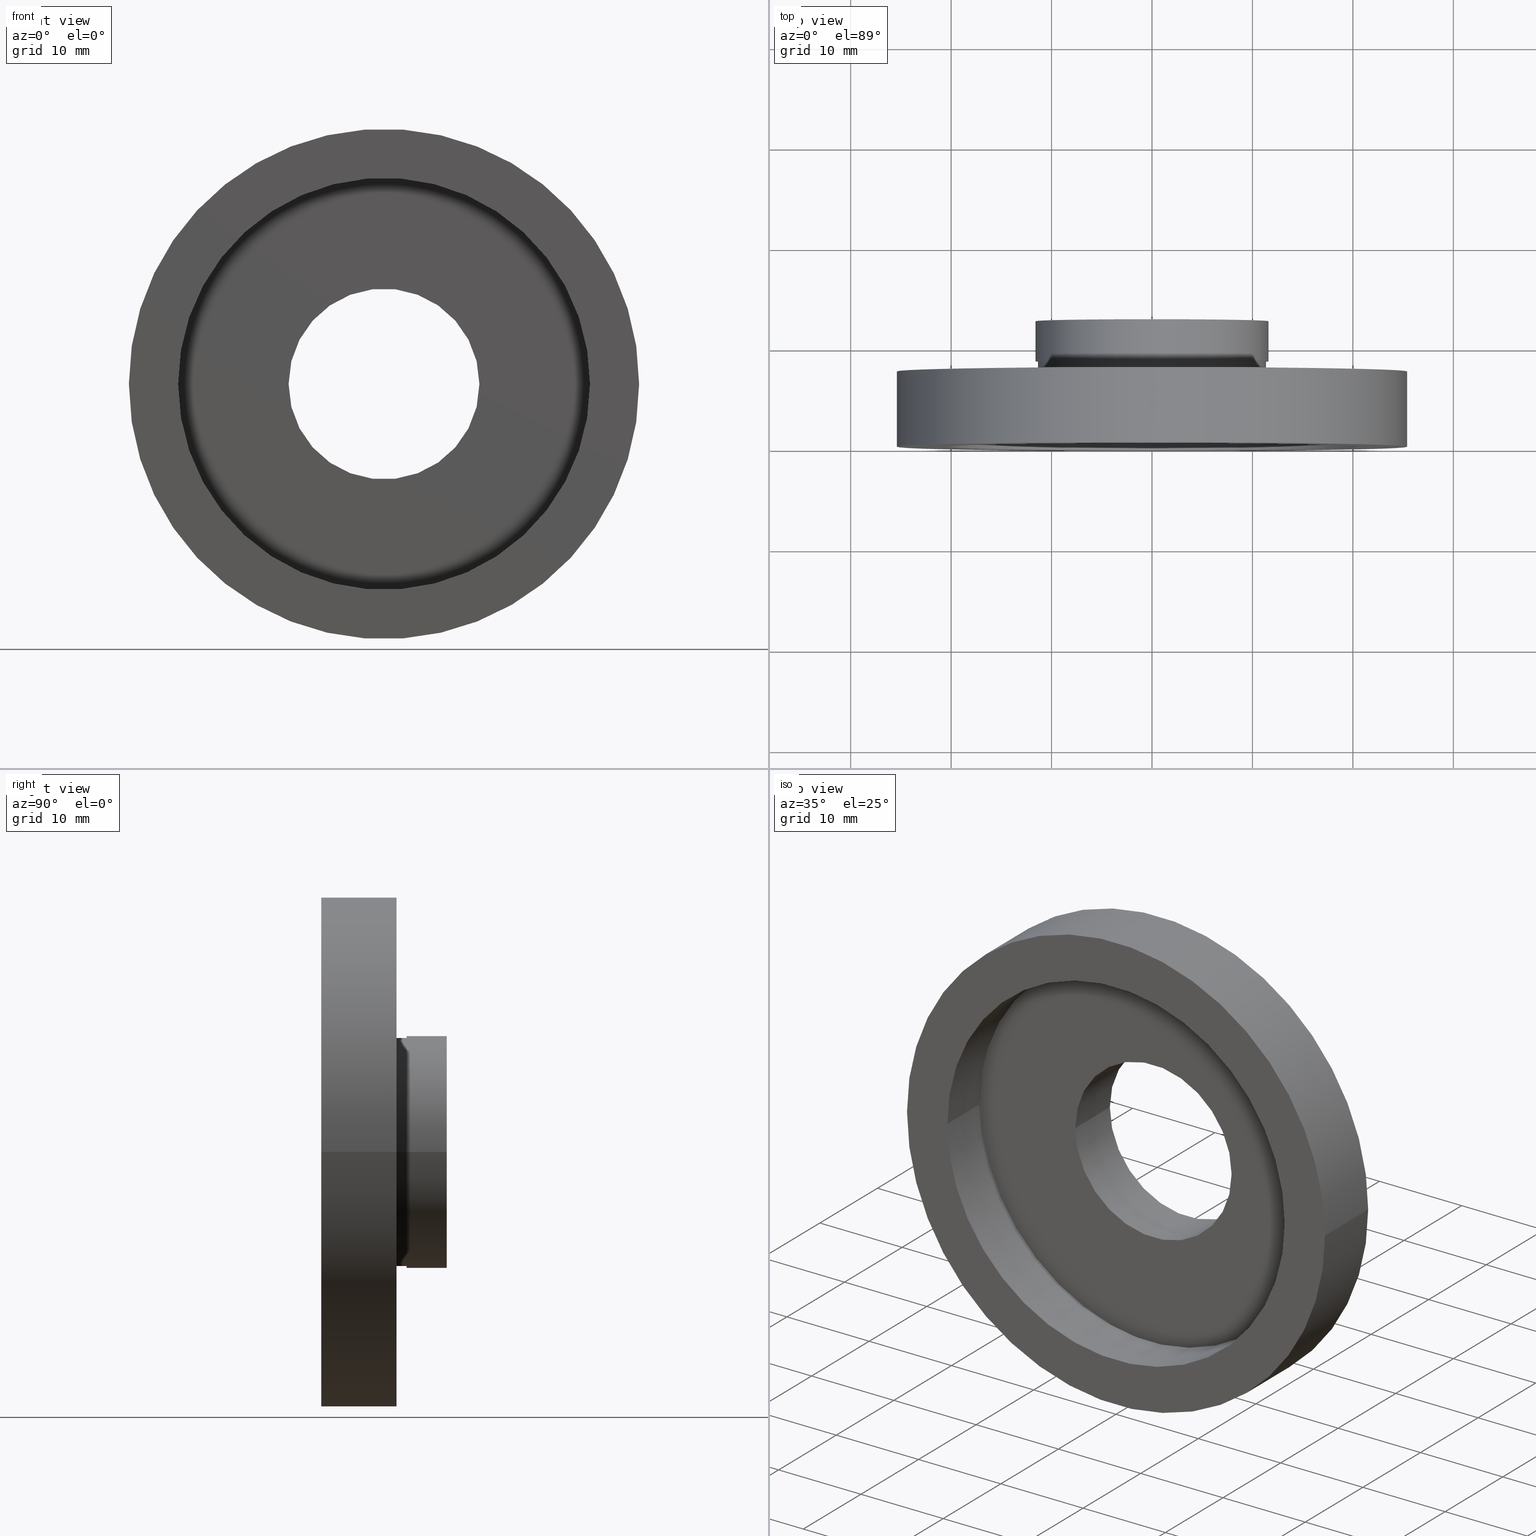
[diagram: canonical four-view strip — front | top / right | iso, engineering-drawing reading convention]
A machine part, canonical four-view strip (front | top / right | iso — engineering-drawing reading convention). The complete STEP part file that produces these views, byte-faithful:
ISO-10303-21;
HEADER;
FILE_DESCRIPTION (( 'STEP AP214' ),
    '1' );
FILE_NAME ('504044.STEP',
    '2019-10-08T03:09:59',
    ( 'user' ),
    ( '΢���й�' ),
    'SwSTEP 2.0',
    'SolidWorks 2016',
    '' );
FILE_SCHEMA (( 'AUTOMOTIVE_DESIGN' ));
ENDSEC;

DATA;
#1 = AXIS2_PLACEMENT_3D ( 'NONE', #214, #417, #514 ) ;
#2 = COLOUR_RGB ( '',1.000000000000000000, 1.000000000000000000, 1.000000000000000000 ) ;
#3 = FILL_AREA_STYLE ('',( #30 ) ) ;
#4 = CIRCLE ( 'NONE', #384, 25.39999999999999900 ) ;
#5 = EDGE_LOOP ( 'NONE', ( #171, #33, #71, #107 ) ) ;
#6 = DIRECTION ( 'NONE',  ( -1.224646799147351000E-016, 1.000000000000000000, 0.0000000000000000000 ) ) ;
#7 = MECHANICAL_DESIGN_GEOMETRIC_PRESENTATION_REPRESENTATION (  '', ( #573 ), #52 ) ;
#8 = CIRCLE ( 'NONE', #441, 11.35000000000000000 ) ;
#9 = SURFACE_SIDE_STYLE ('',( #447 ) ) ;
#10 = ORIENTED_EDGE ( 'NONE', *, *, #115, .F. ) ;
#11 = EDGE_CURVE ( 'NONE', #504, #350, #315, .T. ) ;
#12 = ORIENTED_EDGE ( 'NONE', *, *, #11, .T. ) ;
#13 = DIRECTION ( 'NONE',  ( -1.000000000000000000, -1.269309860470834200E-016, 0.0000000000000000000 ) ) ;
#14 = STYLED_ITEM ( 'NONE', ( #276 ), #94 ) ;
#15 = CARTESIAN_POINT ( 'NONE',  ( 0.0000000000000000000, 16.88601823708207700, 0.0000000000000000000 ) ) ;
#16 = EDGE_CURVE ( 'NONE', #555, #260, #332, .T. ) ;
#17 = AXIS2_PLACEMENT_3D ( 'NONE', #172, #174, #48 ) ;
#18 =( LENGTH_UNIT ( ) NAMED_UNIT ( * ) SI_UNIT ( .MILLI., .METRE. ) );
#19 =( GEOMETRIC_REPRESENTATION_CONTEXT ( 3 ) GLOBAL_UNCERTAINTY_ASSIGNED_CONTEXT ( ( #110 ) ) GLOBAL_UNIT_ASSIGNED_CONTEXT ( ( #24, #248, #327 ) ) REPRESENTATION_CONTEXT ( 'NONE', 'WORKASPACE' ) );
#20 = COLOUR_RGB ( '',1.000000000000000000, 1.000000000000000000, 1.000000000000000000 ) ;
#21 = CIRCLE ( 'NONE', #28, 9.500000000000001800 ) ;
#22 = ORIENTED_EDGE ( 'NONE', *, *, #175, .T. ) ;
#23 = FACE_OUTER_BOUND ( 'NONE', #364, .T. ) ;
#24 =( LENGTH_UNIT ( ) NAMED_UNIT ( * ) SI_UNIT ( .MILLI., .METRE. ) );
#25 = UNCERTAINTY_MEASURE_WITH_UNIT (LENGTH_MEASURE( 1.000000000000000100E-005 ), #367, 'distance_accuracy_value', 'NONE');
#26 = CARTESIAN_POINT ( 'NONE',  ( 21.10000000000000100, 5.499999999999999100, 2.584004746200915400E-015 ) ) ;
#27 = CARTESIAN_POINT ( 'NONE',  ( 11.60000000000000000, 16.88601823708207700, 1.420590287010929500E-015 ) ) ;
#28 = AXIS2_PLACEMENT_3D ( 'NONE', #35, #600, #464 ) ;
#29 = FILL_AREA_STYLE ('',( #494 ) ) ;
#30 = FILL_AREA_STYLE_COLOUR ( '', #20 ) ;
#31 = DIRECTION ( 'NONE',  ( -1.000000000000000000, -1.528390727732869900E-016, 0.0000000000000000000 ) ) ;
#32 = VECTOR ( 'NONE', #529, 1000.000000000000000 ) ;
#33 = ORIENTED_EDGE ( 'NONE', *, *, #175, .F. ) ;
#34 = VECTOR ( 'NONE', #124, 1000.000000000000000 ) ;
#35 = CARTESIAN_POINT ( 'NONE',  ( 5.371323195044473300E-016, 12.49999999999999600, 0.0000000000000000000 ) ) ;
#36 = VERTEX_POINT ( 'NONE', #585 ) ;
#37 = CARTESIAN_POINT ( 'NONE',  ( 0.0000000000000000000, 16.88601823708207700, 0.0000000000000000000 ) ) ;
#38 = PRODUCT_CONTEXT ( 'NONE', #236, 'mechanical' ) ;
#39 =( NAMED_UNIT ( * ) PLANE_ANGLE_UNIT ( ) SI_UNIT ( $, .RADIAN. ) );
#40 = AXIS2_PLACEMENT_3D ( 'NONE', #556, #437, #456 ) ;
#41 = ORIENTED_EDGE ( 'NONE', *, *, #82, .T. ) ;
#42 = CIRCLE ( 'NONE', #122, 11.35000000000000000 ) ;
#43 =( NAMED_UNIT ( * ) PLANE_ANGLE_UNIT ( ) SI_UNIT ( $, .RADIAN. ) );
#44 = ORIENTED_EDGE ( 'NONE', *, *, #89, .F. ) ;
#45 = DIRECTION ( 'NONE',  ( -1.000000000000000000, -1.692413147294445700E-016, 0.0000000000000000000 ) ) ;
#46 = ADVANCED_FACE ( 'NONE', ( #23 ), #413, .T. ) ;
#47 = DIRECTION ( 'NONE',  ( -1.000000000000000000, -1.644287654954319300E-016, 0.0000000000000000000 ) ) ;
#48 = DIRECTION ( 'NONE',  ( -1.000000000000000000, 0.0000000000000000000, 0.0000000000000000000 ) ) ;
#49 = DIRECTION ( 'NONE',  ( -1.224646799147351000E-016, 1.000000000000000000, -0.0000000000000000000 ) ) ;
#50 = CARTESIAN_POINT ( 'NONE',  ( 5.371323195044474300E-016, 12.49999999999999600, 0.0000000000000000000 ) ) ;
#51 = FACE_OUTER_BOUND ( 'NONE', #395, .T. ) ;
#52 =( GEOMETRIC_REPRESENTATION_CONTEXT ( 3 ) GLOBAL_UNCERTAINTY_ASSIGNED_CONTEXT ( ( #151 ) ) GLOBAL_UNIT_ASSIGNED_CONTEXT ( ( #176, #169, #458 ) ) REPRESENTATION_CONTEXT ( 'NONE', 'WORKASPACE' ) );
#53 = VECTOR ( 'NONE', #118, 1000.000000000000000 ) ;
#54 = ADVANCED_FACE ( 'NONE', ( #548 ), #286, .T. ) ;
#55 = ORIENTED_EDGE ( 'NONE', *, *, #612, .F. ) ;
#56 = EDGE_CURVE ( 'NONE', #244, #357, #489, .T. ) ;
#57 = PRESENTATION_LAYER_ASSIGNMENT (  '', '', ( #14 ) ) ;
#58 = EDGE_CURVE ( 'NONE', #371, #478, #61, .T. ) ;
#59 =( GEOMETRIC_REPRESENTATION_CONTEXT ( 3 ) GLOBAL_UNCERTAINTY_ASSIGNED_CONTEXT ( ( #105 ) ) GLOBAL_UNIT_ASSIGNED_CONTEXT ( ( #358, #43, #340 ) ) REPRESENTATION_CONTEXT ( 'NONE', 'WORKASPACE' ) );
#60 = ORIENTED_EDGE ( 'NONE', *, *, #430, .F. ) ;
#61 = CIRCLE ( 'NONE', #511, 25.39999999999999500 ) ;
#62 = AXIS2_PLACEMENT_3D ( 'NONE', #183, #492, #308 ) ;
#63 = CYLINDRICAL_SURFACE ( 'NONE', #17, 11.35000000000000000 ) ;
#64 = ORIENTED_EDGE ( 'NONE', *, *, #544, .F. ) ;
#65 = FACE_OUTER_BOUND ( 'NONE', #165, .T. ) ;
#66 = CARTESIAN_POINT ( 'NONE',  ( 5.371323195044473300E-016, 12.49999999999999600, 0.0000000000000000000 ) ) ;
#67 = CARTESIAN_POINT ( 'NONE',  ( 1.271920398992858000E-015, 6.499999999999997300, 0.0000000000000000000 ) ) ;
#68 = DIRECTION ( 'NONE',  ( -1.000000000000000000, -1.224646799147351000E-016, 0.0000000000000000000 ) ) ;
#69 = ORIENTED_EDGE ( 'NONE', *, *, #146, .T. ) ;
#70 = FACE_OUTER_BOUND ( 'NONE', #208, .T. ) ;
#71 = ORIENTED_EDGE ( 'NONE', *, *, #239, .T. ) ;
#72 = PRESENTATION_LAYER_ASSIGNMENT (  '', '', ( #108 ) ) ;
#73 = FILL_AREA_STYLE_COLOUR ( '', #496 ) ;
#74 = CARTESIAN_POINT ( 'NONE',  ( 1.026991039163387700E-015, 8.499999999999998200, 0.0000000000000000000 ) ) ;
#75 = DIRECTION ( 'NONE',  ( -1.224646799147351000E-016, 1.000000000000000000, -0.0000000000000000000 ) ) ;
#76 = ORIENTED_EDGE ( 'NONE', *, *, #16, .T. ) ;
#77 = COLOUR_RGB ( '',1.000000000000000000, 1.000000000000000000, 1.000000000000000000 ) ;
#78 = DIRECTION ( 'NONE',  ( -1.000000000000000000, -1.365923996832131600E-016, 0.0000000000000000000 ) ) ;
#79 = CYLINDRICAL_SURFACE ( 'NONE', #463, 25.39999999999999900 ) ;
#80 = SURFACE_STYLE_USAGE ( .BOTH. , #443 ) ;
#81 = CARTESIAN_POINT ( 'NONE',  ( 0.0000000000000000000, 16.88601823708207700, 0.0000000000000000000 ) ) ;
#82 = EDGE_CURVE ( 'NONE', #504, #273, #312, .T. ) ;
#83 =( NAMED_UNIT ( * ) PLANE_ANGLE_UNIT ( ) SI_UNIT ( $, .RADIAN. ) );
#84 = DIRECTION ( 'NONE',  ( 1.000000000000000000, 1.224646799147351000E-016, 0.0000000000000000000 ) ) ;
#85 = COLOUR_RGB ( '',1.000000000000000000, 1.000000000000000000, 1.000000000000000000 ) ;
#86 = MECHANICAL_DESIGN_GEOMETRIC_PRESENTATION_REPRESENTATION (  '', ( #14 ), #116 ) ;
#87 = EDGE_LOOP ( 'NONE', ( #60, #572 ) ) ;
#88 = EDGE_LOOP ( 'NONE', ( #259, #41, #509, #321 ) ) ;
#89 = EDGE_CURVE ( 'NONE', #420, #311, #403, .T. ) ;
#90 = AXIS2_PLACEMENT_3D ( 'NONE', #329, #6, #280 ) ;
#91 = DIRECTION ( 'NONE',  ( -1.000000000000000000, -1.644287654954319300E-016, 0.0000000000000000000 ) ) ;
#92 = CARTESIAN_POINT ( 'NONE',  ( 1.394385078907593200E-015, 5.499999999999996400, 0.0000000000000000000 ) ) ;
#93 = AXIS2_PLACEMENT_3D ( 'NONE', #190, #120, #563 ) ;
#94 = ADVANCED_FACE ( 'NONE', ( #180 ), #251, .F. ) ;
#95 = CARTESIAN_POINT ( 'NONE',  ( -21.10000000000000100, 6.499999999999994700, 0.0000000000000000000 ) ) ;
#96 = ADVANCED_FACE ( 'NONE', ( #381 ), #119, .F. ) ;
#97 = FACE_OUTER_BOUND ( 'NONE', #480, .T. ) ;
#98 = FILL_AREA_STYLE_COLOUR ( '', #77 ) ;
#99 = CLOSED_SHELL ( 'NONE', ( #54, #424, #46, #231, #96, #94, #415, #237, #557, #466, #616, #349, #379, #474, #298, #564, #192, #352 ) ) ;
#100 = DIRECTION ( 'NONE',  ( -1.224646799147351000E-016, 1.000000000000000000, -0.0000000000000000000 ) ) ;
#101 = DIRECTION ( 'NONE',  ( -1.224646799147351000E-016, 1.000000000000000000, -0.0000000000000000000 ) ) ;
#102 =( NAMED_UNIT ( * ) SI_UNIT ( $, .STERADIAN. ) SOLID_ANGLE_UNIT ( ) );
#103 =( NAMED_UNIT ( * ) SI_UNIT ( $, .STERADIAN. ) SOLID_ANGLE_UNIT ( ) );
#104 = CARTESIAN_POINT ( 'NONE',  ( 9.500000000000001800, 16.88601823708207700, 1.163414459189985700E-015 ) ) ;
#105 = UNCERTAINTY_MEASURE_WITH_UNIT (LENGTH_MEASURE( 1.000000000000000100E-005 ), #358, 'distance_accuracy_value', 'NONE');
#106 = DIRECTION ( 'NONE',  ( -1.224646799147351000E-016, 1.000000000000000000, -0.0000000000000000000 ) ) ;
#107 = ORIENTED_EDGE ( 'NONE', *, *, #270, .T. ) ;
#108 = STYLED_ITEM ( 'NONE', ( #594 ), #474 ) ;
#109 =( GEOMETRIC_REPRESENTATION_CONTEXT ( 3 ) GLOBAL_UNCERTAINTY_ASSIGNED_CONTEXT ( ( #426 ) ) GLOBAL_UNIT_ASSIGNED_CONTEXT ( ( #382, #39, #103 ) ) REPRESENTATION_CONTEXT ( 'NONE', 'WORKASPACE' ) );
#110 = UNCERTAINTY_MEASURE_WITH_UNIT (LENGTH_MEASURE( 1.000000000000000100E-005 ), #24, 'distance_accuracy_value', 'NONE');
#111 = DIRECTION ( 'NONE',  ( -1.000000000000000000, -1.495451272393799300E-016, 0.0000000000000000000 ) ) ;
#112 = ORIENTED_EDGE ( 'NONE', *, *, #399, .T. ) ;
#113 = DIRECTION ( 'NONE',  ( -1.224646799147351000E-016, 1.000000000000000000, -0.0000000000000000000 ) ) ;
#114 = FILL_AREA_STYLE_COLOUR ( '', #2 ) ;
#115 = EDGE_CURVE ( 'NONE', #141, #392, #134, .T. ) ;
#116 =( GEOMETRIC_REPRESENTATION_CONTEXT ( 3 ) GLOBAL_UNCERTAINTY_ASSIGNED_CONTEXT ( ( #550 ) ) GLOBAL_UNIT_ASSIGNED_CONTEXT ( ( #374, #225, #598 ) ) REPRESENTATION_CONTEXT ( 'NONE', 'WORKASPACE' ) );
#117 = EDGE_CURVE ( 'NONE', #451, #260, #454, .T. ) ;
#118 = DIRECTION ( 'NONE',  ( -1.224646799147351000E-016, 1.000000000000000000, -0.0000000000000000000 ) ) ;
#119 = CYLINDRICAL_SURFACE ( 'NONE', #242, 21.10000000000000100 ) ;
#120 = DIRECTION ( 'NONE',  ( -1.224646799147351000E-016, 1.000000000000000000, -0.0000000000000000000 ) ) ;
#121 = CARTESIAN_POINT ( 'NONE',  ( 1.271920398992858000E-015, 6.499999999999997300, 0.0000000000000000000 ) ) ;
#122 = AXIS2_PLACEMENT_3D ( 'NONE', #388, #366, #467 ) ;
#123 = SURFACE_SIDE_STYLE ('',( #532 ) ) ;
#124 = DIRECTION ( 'NONE',  ( -1.224646799147351000E-016, 1.000000000000000000, -0.0000000000000000000 ) ) ;
#125 = ORIENTED_EDGE ( 'NONE', *, *, #482, .F. ) ;
#126 = ORIENTED_EDGE ( 'NONE', *, *, #281, .T. ) ;
#127 = DIRECTION ( 'NONE',  ( -1.000000000000000000, 0.0000000000000000000, 0.0000000000000000000 ) ) ;
#128 = CARTESIAN_POINT ( 'NONE',  ( -11.35000000000000000, 16.88601823708207700, 0.0000000000000000000 ) ) ;
#129 = AXIS2_PLACEMENT_3D ( 'NONE', #81, #505, #47 ) ;
#130 = DIRECTION ( 'NONE',  ( -1.224646799147351000E-016, 1.000000000000000000, -0.0000000000000000000 ) ) ;
#131 = DIRECTION ( 'NONE',  ( -1.000000000000000000, 0.0000000000000000000, 0.0000000000000000000 ) ) ;
#132 = MANIFOLD_SOLID_BREP ( '��ת1', #99 ) ;
#133 = ORIENTED_EDGE ( 'NONE', *, *, #430, .T. ) ;
#134 = CIRCLE ( 'NONE', #144, 21.10000000000000100 ) ;
#135 = CARTESIAN_POINT ( 'NONE',  ( 0.0000000000000000000, 16.88601823708207700, 0.0000000000000000000 ) ) ;
#136 = APPLICATION_PROTOCOL_DEFINITION ( 'draft international standard', 'automotive_design', 1998, #337 ) ;
#137 = DIRECTION ( 'NONE',  ( -1.000000000000000000, -1.692413147294445700E-016, 0.0000000000000000000 ) ) ;
#138 = CARTESIAN_POINT ( 'NONE',  ( 2.067940818438636500E-015, -3.469446951953614200E-015, 0.0000000000000000000 ) ) ;
#139 = UNCERTAINTY_MEASURE_WITH_UNIT (LENGTH_MEASURE( 1.000000000000000100E-005 ), #18, 'distance_accuracy_value', 'NONE');
#140 = EDGE_LOOP ( 'NONE', ( #405, #305 ) ) ;
#141 = VERTEX_POINT ( 'NONE', #95 ) ;
#142 = ORIENTED_EDGE ( 'NONE', *, *, #541, .T. ) ;
#143 = EDGE_CURVE ( 'NONE', #273, #591, #21, .T. ) ;
#144 = AXIS2_PLACEMENT_3D ( 'NONE', #67, #263, #294 ) ;
#145 = SURFACE_SIDE_STYLE ('',( #603 ) ) ;
#146 = EDGE_CURVE ( 'NONE', #311, #623, #386, .T. ) ;
#147 = STYLED_ITEM ( 'NONE', ( #440 ), #428 ) ;
#148 = CARTESIAN_POINT ( 'NONE',  ( 0.0000000000000000000, 16.88601823708207700, 0.0000000000000000000 ) ) ;
#149 = FACE_BOUND ( 'NONE', #87, .T. ) ;
#150 = FILL_AREA_STYLE ('',( #394 ) ) ;
#151 = UNCERTAINTY_MEASURE_WITH_UNIT (LENGTH_MEASURE( 1.000000000000000100E-005 ), #176, 'distance_accuracy_value', 'NONE');
#152 = AXIS2_PLACEMENT_3D ( 'NONE', #445, #404, #579 ) ;
#153 =( NAMED_UNIT ( * ) PLANE_ANGLE_UNIT ( ) SI_UNIT ( $, .RADIAN. ) );
#154 = CIRCLE ( 'NONE', #409, 11.60000000000000000 ) ;
#155 = DIRECTION ( 'NONE',  ( -1.224646799147351000E-016, 1.000000000000000000, -0.0000000000000000000 ) ) ;
#156 = FACE_OUTER_BOUND ( 'NONE', #5, .T. ) ;
#157 = ORIENTED_EDGE ( 'NONE', *, *, #508, .F. ) ;
#158 =( LENGTH_UNIT ( ) NAMED_UNIT ( * ) SI_UNIT ( .MILLI., .METRE. ) );
#159 = DIRECTION ( 'NONE',  ( -1.224646799147351000E-016, 1.000000000000000000, -0.0000000000000000000 ) ) ;
#160 = EDGE_LOOP ( 'NONE', ( #510, #268, #202, #502 ) ) ;
#161 = VERTEX_POINT ( 'NONE', #521 ) ;
#162 = CIRCLE ( 'NONE', #62, 9.500000000000000000 ) ;
#163 = MECHANICAL_DESIGN_GEOMETRIC_PRESENTATION_REPRESENTATION (  '', ( #108 ), #194 ) ;
#164 = ORIENTED_EDGE ( 'NONE', *, *, #281, .F. ) ;
#165 = EDGE_LOOP ( 'NONE', ( #133, #422, #285, #55 ) ) ;
#166 = FILL_AREA_STYLE ('',( #114 ) ) ;
#167 = CARTESIAN_POINT ( 'NONE',  ( 2.067940818438636500E-015, -3.469446951953614200E-015, 0.0000000000000000000 ) ) ;
#168 = DIRECTION ( 'NONE',  ( -1.224646799147351000E-016, 1.000000000000000000, -0.0000000000000000000 ) ) ;
#169 =( NAMED_UNIT ( * ) PLANE_ANGLE_UNIT ( ) SI_UNIT ( $, .RADIAN. ) );
#170 = VERTEX_POINT ( 'NONE', #347 ) ;
#171 = ORIENTED_EDGE ( 'NONE', *, *, #82, .F. ) ;
#172 = CARTESIAN_POINT ( 'NONE',  ( 0.0000000000000000000, 16.88601823708207700, 0.0000000000000000000 ) ) ;
#173 = SURFACE_STYLE_USAGE ( .BOTH. , #145 ) ;
#174 = DIRECTION ( 'NONE',  ( -1.224646799147351000E-016, 1.000000000000000000, -0.0000000000000000000 ) ) ;
#175 = EDGE_CURVE ( 'NONE', #350, #504, #162, .T. ) ;
#176 =( LENGTH_UNIT ( ) NAMED_UNIT ( * ) SI_UNIT ( .MILLI., .METRE. ) );
#177 = STYLED_ITEM ( 'NONE', ( #243 ), #132 ) ;
#178 = DIRECTION ( 'NONE',  ( -1.224646799147351000E-016, 1.000000000000000000, -0.0000000000000000000 ) ) ;
#179 = ORIENTED_EDGE ( 'NONE', *, *, #218, .T. ) ;
#180 = FACE_OUTER_BOUND ( 'NONE', #292, .T. ) ;
#181 = CARTESIAN_POINT ( 'NONE',  ( 1.149455719078123100E-015, 7.499999999999996400, 0.0000000000000000000 ) ) ;
#182 = PRESENTATION_LAYER_ASSIGNMENT (  '', '', ( #147 ) ) ;
#183 = CARTESIAN_POINT ( 'NONE',  ( 1.271920398992858000E-015, 6.499999999999997300, 0.0000000000000000000 ) ) ;
#184 = CARTESIAN_POINT ( 'NONE',  ( 1.026991039163387700E-015, 8.499999999999998200, 0.0000000000000000000 ) ) ;
#185 = AXIS2_PLACEMENT_3D ( 'NONE', #92, #271, #491 ) ;
#186 = DIRECTION ( 'NONE',  ( -1.224646799147351000E-016, 1.000000000000000000, -0.0000000000000000000 ) ) ;
#187 = VECTOR ( 'NONE', #530, 1000.000000000000000 ) ;
#188 =( LENGTH_UNIT ( ) NAMED_UNIT ( * ) SI_UNIT ( .MILLI., .METRE. ) );
#189 = VECTOR ( 'NONE', #476, 1000.000000000000000 ) ;
#190 = CARTESIAN_POINT ( 'NONE',  ( 1.271920398992858000E-015, 6.499999999999997300, 0.0000000000000000000 ) ) ;
#191 = DIRECTION ( 'NONE',  ( -1.000000000000000000, -1.495451272393799300E-016, 0.0000000000000000000 ) ) ;
#192 = ADVANCED_FACE ( 'NONE', ( #149, #274 ), #620, .F. ) ;
#193 = SURFACE_STYLE_USAGE ( .BOTH. , #565 ) ;
#194 =( GEOMETRIC_REPRESENTATION_CONTEXT ( 3 ) GLOBAL_UNCERTAINTY_ASSIGNED_CONTEXT ( ( #139 ) ) GLOBAL_UNIT_ASSIGNED_CONTEXT ( ( #18, #153, #331 ) ) REPRESENTATION_CONTEXT ( 'NONE', 'WORKASPACE' ) );
#195 = AXIS2_PLACEMENT_3D ( 'NONE', #354, #360, #414 ) ;
#196 = CARTESIAN_POINT ( 'NONE',  ( -9.500000000000001800, 16.88601823708207700, 0.0000000000000000000 ) ) ;
#197 = PRESENTATION_STYLE_ASSIGNMENT (( #542 ) ) ;
#198 = DIRECTION ( 'NONE',  ( -1.000000000000000000, -1.233215741215739600E-016, 0.0000000000000000000 ) ) ;
#199 = FACE_BOUND ( 'NONE', #593, .T. ) ;
#200 = EDGE_LOOP ( 'NONE', ( #64, #488, #429, #495 ) ) ;
#201 = CIRCLE ( 'NONE', #290, 9.500000000000001800 ) ;
#202 = ORIENTED_EDGE ( 'NONE', *, *, #577, .T. ) ;
#203 = DIRECTION ( 'NONE',  ( -1.000000000000000000, -1.495451272393799500E-016, 0.0000000000000000000 ) ) ;
#204 = CARTESIAN_POINT ( 'NONE',  ( 11.35000000000000000, 16.88601823708207700, 1.389974117032245900E-015 ) ) ;
#205 = DIRECTION ( 'NONE',  ( -1.224646799147351000E-016, 1.000000000000000000, -0.0000000000000000000 ) ) ;
#206 = CARTESIAN_POINT ( 'NONE',  ( 25.39999999999999900, 7.500000000000000000, 3.110602869834276900E-015 ) ) ;
#207 = EDGE_CURVE ( 'NONE', #36, #170, #42, .T. ) ;
#208 = EDGE_LOOP ( 'NONE', ( #610, #528, #553, #531 ) ) ;
#209 = EDGE_LOOP ( 'NONE', ( #431, #477 ) ) ;
#210 = AXIS2_PLACEMENT_3D ( 'NONE', #222, #450, #137 ) ;
#211 = CARTESIAN_POINT ( 'NONE',  ( -11.60000000000000000, 12.49999999999999500, 0.0000000000000000000 ) ) ;
#212 = CARTESIAN_POINT ( 'NONE',  ( -20.50000000000000400, 16.88601823708207300, 0.0000000000000000000 ) ) ;
#213 = MECHANICAL_DESIGN_GEOMETRIC_PRESENTATION_REPRESENTATION (  '', ( #147 ), #109 ) ;
#214 = CARTESIAN_POINT ( 'NONE',  ( 1.149455719078122700E-015, 7.499999999999998200, 0.0000000000000000000 ) ) ;
#215 = DIRECTION ( 'NONE',  ( -1.224646799147351000E-016, 1.000000000000000000, -0.0000000000000000000 ) ) ;
#216 = CYLINDRICAL_SURFACE ( 'NONE', #400, 9.500000000000001800 ) ;
#217 = FACE_BOUND ( 'NONE', #209, .T. ) ;
#218 = EDGE_CURVE ( 'NONE', #357, #244, #258, .T. ) ;
#219 = LINE ( 'NONE', #295, #551 ) ;
#220 = SURFACE_STYLE_USAGE ( .BOTH. , #615 ) ;
#221 = STYLED_ITEM ( 'NONE', ( #449 ), #231 ) ;
#222 = CARTESIAN_POINT ( 'NONE',  ( 0.0000000000000000000, 16.88601823708207700, 0.0000000000000000000 ) ) ;
#223 = CARTESIAN_POINT ( 'NONE',  ( 11.35000000000000100, 7.500000000000000000, 1.389974117032245900E-015 ) ) ;
#224 = CARTESIAN_POINT ( 'NONE',  ( 9.500000000000001800, 12.49999999999999800, 0.0000000000000000000 ) ) ;
#225 =( NAMED_UNIT ( * ) PLANE_ANGLE_UNIT ( ) SI_UNIT ( $, .RADIAN. ) );
#226 = CARTESIAN_POINT ( 'NONE',  ( 0.0000000000000000000, 16.88601823708207700, 0.0000000000000000000 ) ) ;
#227 = FACE_OUTER_BOUND ( 'NONE', #252, .T. ) ;
#228 = APPLICATION_PROTOCOL_DEFINITION ( 'draft international standard', 'automotive_design', 1998, #236 ) ;
#229 = CARTESIAN_POINT ( 'NONE',  ( 1.149455719078123100E-015, 7.499999999999996400, 0.0000000000000000000 ) ) ;
#230 = AXIS2_PLACEMENT_3D ( 'NONE', #181, #215, #567 ) ;
#231 = ADVANCED_FACE ( 'NONE', ( #291 ), #216, .F. ) ;
#232 = CARTESIAN_POINT ( 'NONE',  ( -9.499999999999998200, 6.499999999999996400, 0.0000000000000000000 ) ) ;
#233 = CIRCLE ( 'NONE', #1, 11.35000000000000000 ) ;
#234 = PRODUCT_DEFINITION ( 'δ֪', '', #261, #624 ) ;
#235 = LINE ( 'NONE', #465, #34 ) ;
#236 = APPLICATION_CONTEXT ( 'automotive_design' ) ;
#237 = ADVANCED_FACE ( 'NONE', ( #333 ), #335, .F. ) ;
#238 = CYLINDRICAL_SURFACE ( 'NONE', #383, 11.60000000000000000 ) ;
#239 = EDGE_CURVE ( 'NONE', #350, #591, #421, .T. ) ;
#240 = EDGE_LOOP ( 'NONE', ( #589, #518, #125, #363 ) ) ;
#241 = PRODUCT_DEFINITION_SHAPE ( 'NONE', 'NONE',  #234 ) ;
#242 = AXIS2_PLACEMENT_3D ( 'NONE', #549, #205, #91 ) ;
#243 = PRESENTATION_STYLE_ASSIGNMENT (( #220 ) ) ;
#244 = VERTEX_POINT ( 'NONE', #344 ) ;
#245 = ORIENTED_EDGE ( 'NONE', *, *, #407, .F. ) ;
#246 = EDGE_CURVE ( 'NONE', #623, #396, #554, .T. ) ;
#247 = PRESENTATION_LAYER_ASSIGNMENT (  '', '', ( #221 ) ) ;
#248 =( NAMED_UNIT ( * ) PLANE_ANGLE_UNIT ( ) SI_UNIT ( $, .RADIAN. ) );
#249 = LINE ( 'NONE', #561, #460 ) ;
#250 = ORIENTED_EDGE ( 'NONE', *, *, #473, .F. ) ;
#251 = CYLINDRICAL_SURFACE ( 'NONE', #210, 20.50000000000000400 ) ;
#252 = EDGE_LOOP ( 'NONE', ( #341, #179 ) ) ;
#253 = EDGE_LOOP ( 'NONE', ( #22, #12 ) ) ;
#254 = SURFACE_STYLE_USAGE ( .BOTH. , #338 ) ;
#255 =( GEOMETRIC_REPRESENTATION_CONTEXT ( 3 ) GLOBAL_UNCERTAINTY_ASSIGNED_CONTEXT ( ( #297 ) ) GLOBAL_UNIT_ASSIGNED_CONTEXT ( ( #158, #459, #435 ) ) REPRESENTATION_CONTEXT ( 'NONE', 'WORKASPACE' ) );
#256 = DIRECTION ( 'NONE',  ( -1.000000000000000000, -1.224646799147351000E-016, 0.0000000000000000000 ) ) ;
#257 = AXIS2_PLACEMENT_3D ( 'NONE', #167, #348, #256 ) ;
#258 = CIRCLE ( 'NONE', #185, 21.10000000000000100 ) ;
#259 = ORIENTED_EDGE ( 'NONE', *, *, #11, .F. ) ;
#260 = VERTEX_POINT ( 'NONE', #562 ) ;
#261 = PRODUCT_DEFINITION_FORMATION_WITH_SPECIFIED_SOURCE ( '�κ�', '', #602, .NOT_KNOWN. ) ;
#262 = CARTESIAN_POINT ( 'NONE',  ( -11.60000000000000000, 16.88601823708207700, 0.0000000000000000000 ) ) ;
#263 = DIRECTION ( 'NONE',  ( -1.224646799147351000E-016, 1.000000000000000000, -0.0000000000000000000 ) ) ;
#264 = CARTESIAN_POINT ( 'NONE',  ( 20.50000000000000400, 5.500000000000000000, 0.0000000000000000000 ) ) ;
#265 = CARTESIAN_POINT ( 'NONE',  ( 5.371323195044474300E-016, 12.49999999999999600, 0.0000000000000000000 ) ) ;
#266 = FACE_OUTER_BOUND ( 'NONE', #326, .T. ) ;
#267 = SURFACE_STYLE_FILL_AREA ( #592 ) ;
#268 = ORIENTED_EDGE ( 'NONE', *, *, #343, .T. ) ;
#269 = CARTESIAN_POINT ( 'NONE',  ( -25.39999999999999900, 16.88601823708207300, 0.0000000000000000000 ) ) ;
#270 = EDGE_CURVE ( 'NONE', #591, #273, #201, .T. ) ;
#271 = DIRECTION ( 'NONE',  ( -1.224646799147351000E-016, 1.000000000000000000, -0.0000000000000000000 ) ) ;
#272 = PRESENTATION_LAYER_ASSIGNMENT (  '', '', ( #177 ) ) ;
#273 = VERTEX_POINT ( 'NONE', #490 ) ;
#274 = FACE_OUTER_BOUND ( 'NONE', #317, .T. ) ;
#275 = ORIENTED_EDGE ( 'NONE', *, *, #544, .T. ) ;
#276 = PRESENTATION_STYLE_ASSIGNMENT (( #369 ) ) ;
#277 = DIRECTION ( 'NONE',  ( -1.000000000000000000, -1.224646799147351200E-016, 0.0000000000000000000 ) ) ;
#278 = PLANE ( 'NONE',  #497 ) ;
#279 = PLANE ( 'NONE',  #90 ) ;
#280 = DIRECTION ( 'NONE',  ( -1.000000000000000000, -1.224646799147351000E-016, 0.0000000000000000000 ) ) ;
#281 = EDGE_CURVE ( 'NONE', #481, #412, #4, .T. ) ;
#282 = DIRECTION ( 'NONE',  ( -1.000000000000000000, 0.0000000000000000000, 0.0000000000000000000 ) ) ;
#283 = MECHANICAL_DESIGN_GEOMETRIC_PRESENTATION_REPRESENTATION (  '', ( #221 ), #316 ) ;
#284 = LINE ( 'NONE', #128, #32 ) ;
#285 = ORIENTED_EDGE ( 'NONE', *, *, #512, .F. ) ;
#286 = CYLINDRICAL_SURFACE ( 'NONE', #580, 25.39999999999999900 ) ;
#287 = CARTESIAN_POINT ( 'NONE',  ( -9.500000000000001800, 12.49999999999999500, 0.0000000000000000000 ) ) ;
#288 = ORIENTED_EDGE ( 'NONE', *, *, #375, .T. ) ;
#289 = DIRECTION ( 'NONE',  ( -1.000000000000000000, -1.365923996832131600E-016, 0.0000000000000000000 ) ) ;
#290 = AXIS2_PLACEMENT_3D ( 'NONE', #66, #578, #604 ) ;
#291 = FACE_OUTER_BOUND ( 'NONE', #88, .T. ) ;
#292 = EDGE_LOOP ( 'NONE', ( #334, #275, #76, #301 ) ) ;
#293 = ORIENTED_EDGE ( 'NONE', *, *, #307, .T. ) ;
#294 = DIRECTION ( 'NONE',  ( -1.000000000000000000, -1.233215741215739600E-016, 0.0000000000000000000 ) ) ;
#295 = CARTESIAN_POINT ( 'NONE',  ( -21.10000000000000100, 16.88601823708207300, 0.0000000000000000000 ) ) ;
#296 = PRODUCT_RELATED_PRODUCT_CATEGORY ( 'part', '', ( #602 ) ) ;
#297 = UNCERTAINTY_MEASURE_WITH_UNIT (LENGTH_MEASURE( 1.000000000000000100E-005 ), #158, 'distance_accuracy_value', 'NONE');
#298 = ADVANCED_FACE ( 'NONE', ( #97, #217 ), #410, .F. ) ;
#299 = CYLINDRICAL_SURFACE ( 'NONE', #129, 21.10000000000000100 ) ;
#300 = LINE ( 'NONE', #339, #401 ) ;
#301 = ORIENTED_EDGE ( 'NONE', *, *, #117, .F. ) ;
#302 = FACE_BOUND ( 'NONE', #583, .T. ) ;
#303 = DIRECTION ( 'NONE',  ( -1.224646799147351000E-016, 1.000000000000000000, -0.0000000000000000000 ) ) ;
#304 = EDGE_LOOP ( 'NONE', ( #595, #533 ) ) ;
#305 = ORIENTED_EDGE ( 'NONE', *, *, #475, .F. ) ;
#306 = FILL_AREA_STYLE ('',( #98 ) ) ;
#307 = EDGE_CURVE ( 'NONE', #462, #433, #469, .T. ) ;
#308 = DIRECTION ( 'NONE',  ( -1.000000000000000000, -9.130123557772668300E-017, 0.0000000000000000000 ) ) ;
#309 = DIRECTION ( 'NONE',  ( -1.224646799147351000E-016, 1.000000000000000000, -0.0000000000000000000 ) ) ;
#310 = MECHANICAL_DESIGN_GEOMETRIC_PRESENTATION_REPRESENTATION (  '', ( #177 ), #619 ) ;
#311 = VERTEX_POINT ( 'NONE', #468 ) ;
#312 = LINE ( 'NONE', #104, #540 ) ;
#313 = EDGE_CURVE ( 'NONE', #357, #392, #235, .T. ) ;
#314 = SURFACE_STYLE_USAGE ( .BOTH. , #123 ) ;
#315 = CIRCLE ( 'NONE', #506, 9.500000000000000000 ) ;
#316 =( GEOMETRIC_REPRESENTATION_CONTEXT ( 3 ) GLOBAL_UNCERTAINTY_ASSIGNED_CONTEXT ( ( #25 ) ) GLOBAL_UNIT_ASSIGNED_CONTEXT ( ( #367, #373, #102 ) ) REPRESENTATION_CONTEXT ( 'NONE', 'WORKASPACE' ) );
#317 = EDGE_LOOP ( 'NONE', ( #390, #126 ) ) ;
#318 = ORIENTED_EDGE ( 'NONE', *, *, #246, .T. ) ;
#319 = UNCERTAINTY_MEASURE_WITH_UNIT (LENGTH_MEASURE( 1.000000000000000100E-005 ), #188, 'distance_accuracy_value', 'NONE');
#320 = DIRECTION ( 'NONE',  ( -1.000000000000000000, -1.224646799147351000E-016, 0.0000000000000000000 ) ) ;
#321 = ORIENTED_EDGE ( 'NONE', *, *, #239, .F. ) ;
#322 = DIRECTION ( 'NONE',  ( -1.224646799147351000E-016, 1.000000000000000000, -0.0000000000000000000 ) ) ;
#323 = SURFACE_STYLE_FILL_AREA ( #346 ) ;
#324 = DIRECTION ( 'NONE',  ( -1.000000000000000000, -1.224646799147351000E-016, 0.0000000000000000000 ) ) ;
#325 = AXIS2_PLACEMENT_3D ( 'NONE', #50, #186, #191 ) ;
#326 = EDGE_LOOP ( 'NONE', ( #10, #547 ) ) ;
#327 =( NAMED_UNIT ( * ) SI_UNIT ( $, .STERADIAN. ) SOLID_ANGLE_UNIT ( ) );
#328 = DIRECTION ( 'NONE',  ( -1.224646799147351000E-016, 1.000000000000000000, -0.0000000000000000000 ) ) ;
#329 = CARTESIAN_POINT ( 'NONE',  ( 9.500000000000001800, 6.499999999999998200, 0.0000000000000000000 ) ) ;
#330 = DIRECTION ( 'NONE',  ( -1.000000000000000000, -1.495451272393799500E-016, 0.0000000000000000000 ) ) ;
#331 =( NAMED_UNIT ( * ) SI_UNIT ( $, .STERADIAN. ) SOLID_ANGLE_UNIT ( ) );
#332 = CIRCLE ( 'NONE', #535, 20.50000000000000400 ) ;
#333 = FACE_OUTER_BOUND ( 'NONE', #200, .T. ) ;
#334 = ORIENTED_EDGE ( 'NONE', *, *, #438, .F. ) ;
#335 = CYLINDRICAL_SURFACE ( 'NONE', #353, 20.50000000000000400 ) ;
#336 = EDGE_LOOP ( 'NONE', ( #568, #385, #112, #250 ) ) ;
#337 = APPLICATION_CONTEXT ( 'automotive_design' ) ;
#338 = SURFACE_SIDE_STYLE ('',( #569 ) ) ;
#339 = CARTESIAN_POINT ( 'NONE',  ( 25.39999999999999900, 16.88601823708208000, 3.110602869834276900E-015 ) ) ;
#340 =( NAMED_UNIT ( * ) SI_UNIT ( $, .STERADIAN. ) SOLID_ANGLE_UNIT ( ) );
#341 = ORIENTED_EDGE ( 'NONE', *, *, #56, .T. ) ;
#342 = DIRECTION ( 'NONE',  ( -1.224646799147351000E-016, 1.000000000000000000, -0.0000000000000000000 ) ) ;
#343 = EDGE_CURVE ( 'NONE', #311, #420, #501, .T. ) ;
#344 = CARTESIAN_POINT ( 'NONE',  ( -21.10000000000000100, 5.499999999999993800, 0.0000000000000000000 ) ) ;
#345 = PRESENTATION_LAYER_ASSIGNMENT (  '', '', ( #377 ) ) ;
#346 = FILL_AREA_STYLE ('',( #574 ) ) ;
#347 = CARTESIAN_POINT ( 'NONE',  ( -11.34999999999999800, 8.499999999999996400, 0.0000000000000000000 ) ) ;
#348 = DIRECTION ( 'NONE',  ( -1.224646799147351000E-016, 1.000000000000000000, -0.0000000000000000000 ) ) ;
#349 = ADVANCED_FACE ( 'NONE', ( #156 ), #356, .F. ) ;
#350 = VERTEX_POINT ( 'NONE', #232 ) ;
#351 = PRESENTATION_STYLE_ASSIGNMENT (( #173 ) ) ;
#352 = ADVANCED_FACE ( 'NONE', ( #590 ), #79, .T. ) ;
#353 = AXIS2_PLACEMENT_3D ( 'NONE', #226, #545, #45 ) ;
#354 = CARTESIAN_POINT ( 'NONE',  ( 0.0000000000000000000, 0.0000000000000000000, 0.0000000000000000000 ) ) ;
#355 = SURFACE_STYLE_FILL_AREA ( #166 ) ;
#356 = CYLINDRICAL_SURFACE ( 'NONE', #427, 9.500000000000001800 ) ;
#357 = VERTEX_POINT ( 'NONE', #26 ) ;
#358 =( LENGTH_UNIT ( ) NAMED_UNIT ( * ) SI_UNIT ( .MILLI., .METRE. ) );
#359 = DIRECTION ( 'NONE',  ( -1.224646799147351000E-016, 1.000000000000000000, -0.0000000000000000000 ) ) ;
#360 = DIRECTION ( 'NONE',  ( 0.0000000000000000000, 0.0000000000000000000, 1.000000000000000000 ) ) ;
#361 = CIRCLE ( 'NONE', #483, 20.50000000000000000 ) ;
#362 = ORIENTED_EDGE ( 'NONE', *, *, #143, .F. ) ;
#363 = ORIENTED_EDGE ( 'NONE', *, *, #375, .F. ) ;
#364 = EDGE_LOOP ( 'NONE', ( #539, #69, #157, #453 ) ) ;
#365 = DIRECTION ( 'NONE',  ( -1.000000000000000000, -1.528390727732869900E-016, 0.0000000000000000000 ) ) ;
#366 = DIRECTION ( 'NONE',  ( -1.224646799147351000E-016, 1.000000000000000000, -0.0000000000000000000 ) ) ;
#367 =( LENGTH_UNIT ( ) NAMED_UNIT ( * ) SI_UNIT ( .MILLI., .METRE. ) );
#368 = CARTESIAN_POINT ( 'NONE',  ( 9.500000000000001800, 6.499999999999998200, 1.163414459189985700E-015 ) ) ;
#369 = SURFACE_STYLE_USAGE ( .BOTH. , #439 ) ;
#370 = LINE ( 'NONE', #204, #187 ) ;
#371 = VERTEX_POINT ( 'NONE', #523 ) ;
#372 = CIRCLE ( 'NONE', #93, 21.10000000000000100 ) ;
#373 =( NAMED_UNIT ( * ) PLANE_ANGLE_UNIT ( ) SI_UNIT ( $, .RADIAN. ) );
#374 =( LENGTH_UNIT ( ) NAMED_UNIT ( * ) SI_UNIT ( .MILLI., .METRE. ) );
#375 = EDGE_CURVE ( 'NONE', #371, #412, #487, .T. ) ;
#376 = CARTESIAN_POINT ( 'NONE',  ( 21.10000000000000100, 6.500000000000000000, 2.584004746200915400E-015 ) ) ;
#377 = STYLED_ITEM ( 'NONE', ( #197 ), #237 ) ;
#378 = CARTESIAN_POINT ( 'NONE',  ( 1.394385078907593000E-015, 5.499999999999998200, 0.0000000000000000000 ) ) ;
#379 = ADVANCED_FACE ( 'NONE', ( #302, #51 ), #278, .F. ) ;
#380 = ORIENTED_EDGE ( 'NONE', *, *, #207, .F. ) ;
#381 = FACE_OUTER_BOUND ( 'NONE', #336, .T. ) ;
#382 =( LENGTH_UNIT ( ) NAMED_UNIT ( * ) SI_UNIT ( .MILLI., .METRE. ) );
#383 = AXIS2_PLACEMENT_3D ( 'NONE', #135, #342, #127 ) ;
#384 = AXIS2_PLACEMENT_3D ( 'NONE', #229, #75, #78 ) ;
#385 = ORIENTED_EDGE ( 'NONE', *, *, #313, .T. ) ;
#386 = LINE ( 'NONE', #27, #393 ) ;
#387 = CARTESIAN_POINT ( 'NONE',  ( 2.067940818438636500E-015, -3.469446951953614200E-015, 0.0000000000000000000 ) ) ;
#388 = CARTESIAN_POINT ( 'NONE',  ( 1.026991039163387700E-015, 8.499999999999998200, 0.0000000000000000000 ) ) ;
#389 = DIRECTION ( 'NONE',  ( 1.224646799147351000E-016, -1.000000000000000000, 0.0000000000000000000 ) ) ;
#390 = ORIENTED_EDGE ( 'NONE', *, *, #482, .T. ) ;
#391 = DIRECTION ( 'NONE',  ( -1.224646799147351000E-016, 1.000000000000000000, -0.0000000000000000000 ) ) ;
#392 = VERTEX_POINT ( 'NONE', #376 ) ;
#393 = VECTOR ( 'NONE', #359, 1000.000000000000000 ) ;
#394 = FILL_AREA_STYLE_COLOUR ( '', #534 ) ;
#395 = EDGE_LOOP ( 'NONE', ( #560, #318 ) ) ;
#396 = VERTEX_POINT ( 'NONE', #211 ) ;
#397 = CARTESIAN_POINT ( 'NONE',  ( 20.50000000000000400, 5.500000000000000900, 2.510525938252074500E-015 ) ) ;
#398 = CARTESIAN_POINT ( 'NONE',  ( 1.394385078907593200E-015, 5.499999999999996400, 0.0000000000000000000 ) ) ;
#399 = EDGE_CURVE ( 'NONE', #392, #141, #372, .T. ) ;
#400 = AXIS2_PLACEMENT_3D ( 'NONE', #507, #416, #131 ) ;
#401 = VECTOR ( 'NONE', #100, 1000.000000000000000 ) ;
#402 = EDGE_LOOP ( 'NONE', ( #442, #526, #288, #164 ) ) ;
#403 = CIRCLE ( 'NONE', #611, 11.59999999999999800 ) ;
#404 = DIRECTION ( 'NONE',  ( 1.224646799147351000E-016, -1.000000000000000000, 0.0000000000000000000 ) ) ;
#405 = ORIENTED_EDGE ( 'NONE', *, *, #58, .F. ) ;
#406 = DIRECTION ( 'NONE',  ( -1.224646799147351000E-016, 1.000000000000000000, -0.0000000000000000000 ) ) ;
#407 = EDGE_CURVE ( 'NONE', #462, #36, #370, .T. ) ;
#408 = DIRECTION ( 'NONE',  ( -1.224646799147351000E-016, 1.000000000000000000, 0.0000000000000000000 ) ) ;
#409 = AXIS2_PLACEMENT_3D ( 'NONE', #265, #130, #111 ) ;
#410 = PLANE ( 'NONE',  #484 ) ;
#411 = PLANE ( 'NONE',  #584 ) ;
#412 = VERTEX_POINT ( 'NONE', #455 ) ;
#413 = CYLINDRICAL_SURFACE ( 'NONE', #543, 11.60000000000000000 ) ;
#414 = DIRECTION ( 'NONE',  ( 1.000000000000000000, 0.0000000000000000000, 0.0000000000000000000 ) ) ;
#415 = ADVANCED_FACE ( 'NONE', ( #500, #199 ), #446, .F. ) ;
#416 = DIRECTION ( 'NONE',  ( -1.224646799147351000E-016, 1.000000000000000000, -0.0000000000000000000 ) ) ;
#417 = DIRECTION ( 'NONE',  ( -1.224646799147351000E-016, 1.000000000000000000, -0.0000000000000000000 ) ) ;
#418 = CYLINDRICAL_SURFACE ( 'NONE', #40, 11.35000000000000000 ) ;
#419 = FACE_BOUND ( 'NONE', #253, .T. ) ;
#420 = VERTEX_POINT ( 'NONE', #536 ) ;
#421 = LINE ( 'NONE', #196, #189 ) ;
#422 = ORIENTED_EDGE ( 'NONE', *, *, #407, .T. ) ;
#423 = CARTESIAN_POINT ( 'NONE',  ( -11.34999999999999800, 7.499999999999996400, 0.0000000000000000000 ) ) ;
#424 = ADVANCED_FACE ( 'NONE', ( #65 ), #418, .T. ) ;
#425 = DIRECTION ( 'NONE',  ( -1.000000000000000000, -9.130123557772668300E-017, 0.0000000000000000000 ) ) ;
#426 = UNCERTAINTY_MEASURE_WITH_UNIT (LENGTH_MEASURE( 1.000000000000000100E-005 ), #382, 'distance_accuracy_value', 'NONE');
#427 = AXIS2_PLACEMENT_3D ( 'NONE', #37, #155, #519 ) ;
#428 = ADVANCED_BREP_SHAPE_REPRESENTATION ( '504044', ( #132, #195 ), #59 ) ;
#429 = ORIENTED_EDGE ( 'NONE', *, *, #117, .T. ) ;
#430 = EDGE_CURVE ( 'NONE', #433, #462, #233, .T. ) ;
#431 = ORIENTED_EDGE ( 'NONE', *, *, #512, .T. ) ;
#432 = SURFACE_STYLE_FILL_AREA ( #3 ) ;
#433 = VERTEX_POINT ( 'NONE', #423 ) ;
#434 = MECHANICAL_DESIGN_GEOMETRIC_PRESENTATION_REPRESENTATION (  '', ( #377 ), #255 ) ;
#435 =( NAMED_UNIT ( * ) SI_UNIT ( $, .STERADIAN. ) SOLID_ANGLE_UNIT ( ) );
#436 = DIRECTION ( 'NONE',  ( -1.000000000000000000, -1.269309860470834200E-016, 0.0000000000000000000 ) ) ;
#437 = DIRECTION ( 'NONE',  ( -1.224646799147351000E-016, 1.000000000000000000, -0.0000000000000000000 ) ) ;
#438 = EDGE_CURVE ( 'NONE', #161, #451, #517, .T. ) ;
#439 = SURFACE_SIDE_STYLE ('',( #267 ) ) ;
#440 = PRESENTATION_STYLE_ASSIGNMENT (( #193 ) ) ;
#441 = AXIS2_PLACEMENT_3D ( 'NONE', #74, #178, #31 ) ;
#442 = ORIENTED_EDGE ( 'NONE', *, *, #582, .F. ) ;
#443 = SURFACE_SIDE_STYLE ('',( #355 ) ) ;
#444 = AXIS2_PLACEMENT_3D ( 'NONE', #599, #516, #365 ) ;
#445 = CARTESIAN_POINT ( 'NONE',  ( 11.35000000000000100, 7.499999999999999100, 0.0000000000000000000 ) ) ;
#446 = PLANE ( 'NONE',  #597 ) ;
#447 = SURFACE_STYLE_FILL_AREA ( #29 ) ;
#448 = DIRECTION ( 'NONE',  ( -1.224646799147351000E-016, 1.000000000000000000, -0.0000000000000000000 ) ) ;
#449 = PRESENTATION_STYLE_ASSIGNMENT (( #314 ) ) ;
#450 = DIRECTION ( 'NONE',  ( -1.224646799147351000E-016, 1.000000000000000000, -0.0000000000000000000 ) ) ;
#451 = VERTEX_POINT ( 'NONE', #588 ) ;
#452 = PRESENTATION_STYLE_ASSIGNMENT (( #254 ) ) ;
#453 = ORIENTED_EDGE ( 'NONE', *, *, #577, .F. ) ;
#454 = LINE ( 'NONE', #212, #617 ) ;
#455 = CARTESIAN_POINT ( 'NONE',  ( -25.39999999999999900, 7.499999999999992900, 0.0000000000000000000 ) ) ;
#456 = DIRECTION ( 'NONE',  ( -1.000000000000000000, 0.0000000000000000000, 0.0000000000000000000 ) ) ;
#457 = FILL_AREA_STYLE_COLOUR ( '', #527 ) ;
#458 =( NAMED_UNIT ( * ) SI_UNIT ( $, .STERADIAN. ) SOLID_ANGLE_UNIT ( ) );
#459 =( NAMED_UNIT ( * ) PLANE_ANGLE_UNIT ( ) SI_UNIT ( $, .RADIAN. ) );
#460 = VECTOR ( 'NONE', #522, 1000.000000000000000 ) ;
#461 = LINE ( 'NONE', #262, #493 ) ;
#462 = VERTEX_POINT ( 'NONE', #223 ) ;
#463 = AXIS2_PLACEMENT_3D ( 'NONE', #15, #391, #606 ) ;
#464 = DIRECTION ( 'NONE',  ( -1.000000000000000000, -1.826024711554533400E-016, 0.0000000000000000000 ) ) ;
#465 = CARTESIAN_POINT ( 'NONE',  ( 21.10000000000000100, 16.88601823708208000, 2.584004746200915400E-015 ) ) ;
#466 = ADVANCED_FACE ( 'NONE', ( #70 ), #299, .F. ) ;
#467 = DIRECTION ( 'NONE',  ( -1.000000000000000000, -1.528390727732869900E-016, 0.0000000000000000000 ) ) ;
#468 = CARTESIAN_POINT ( 'NONE',  ( 11.60000000000000000, 8.500000000000000000, 1.420590287010929500E-015 ) ) ;
#469 = CIRCLE ( 'NONE', #444, 11.35000000000000000 ) ;
#470 =( NAMED_UNIT ( * ) SI_UNIT ( $, .STERADIAN. ) SOLID_ANGLE_UNIT ( ) );
#471 = ORIENTED_EDGE ( 'NONE', *, *, #438, .T. ) ;
#472 = ORIENTED_EDGE ( 'NONE', *, *, #612, .T. ) ;
#473 = EDGE_CURVE ( 'NONE', #244, #141, #219, .T. ) ;
#474 = ADVANCED_FACE ( 'NONE', ( #485 ), #238, .T. ) ;
#475 = EDGE_CURVE ( 'NONE', #478, #371, #608, .T. ) ;
#476 = DIRECTION ( 'NONE',  ( -1.224646799147351000E-016, 1.000000000000000000, -0.0000000000000000000 ) ) ;
#477 = ORIENTED_EDGE ( 'NONE', *, *, #207, .T. ) ;
#478 = VERTEX_POINT ( 'NONE', #525 ) ;
#479 = AXIS2_PLACEMENT_3D ( 'NONE', #398, #486, #198 ) ;
#480 = EDGE_LOOP ( 'NONE', ( #44, #618 ) ) ;
#481 = VERTEX_POINT ( 'NONE', #206 ) ;
#482 = EDGE_CURVE ( 'NONE', #412, #481, #537, .T. ) ;
#483 = AXIS2_PLACEMENT_3D ( 'NONE', #138, #101, #277 ) ;
#484 = AXIS2_PLACEMENT_3D ( 'NONE', #503, #499, #324 ) ;
#485 = FACE_OUTER_BOUND ( 'NONE', #160, .T. ) ;
#486 = DIRECTION ( 'NONE',  ( -1.224646799147351000E-016, 1.000000000000000000, -0.0000000000000000000 ) ) ;
#487 = LINE ( 'NONE', #269, #53 ) ;
#488 = ORIENTED_EDGE ( 'NONE', *, *, #541, .F. ) ;
#489 = CIRCLE ( 'NONE', #479, 21.10000000000000100 ) ;
#490 = CARTESIAN_POINT ( 'NONE',  ( 9.500000000000001800, 12.49999999999999800, 1.163414459189985700E-015 ) ) ;
#491 = DIRECTION ( 'NONE',  ( -1.000000000000000000, -1.233215741215739600E-016, 0.0000000000000000000 ) ) ;
#492 = DIRECTION ( 'NONE',  ( -1.224646799147351000E-016, 1.000000000000000000, -0.0000000000000000000 ) ) ;
#493 = VECTOR ( 'NONE', #113, 1000.000000000000000 ) ;
#494 = FILL_AREA_STYLE_COLOUR ( '', #587 ) ;
#495 = ORIENTED_EDGE ( 'NONE', *, *, #607, .T. ) ;
#496 = COLOUR_RGB ( '',1.000000000000000000, 1.000000000000000000, 1.000000000000000000 ) ;
#497 = AXIS2_PLACEMENT_3D ( 'NONE', #224, #389, #84 ) ;
#498 = CARTESIAN_POINT ( 'NONE',  ( 0.0000000000000000000, 16.88601823708207700, 0.0000000000000000000 ) ) ;
#499 = DIRECTION ( 'NONE',  ( -1.224646799147351000E-016, 1.000000000000000000, 0.0000000000000000000 ) ) ;
#500 = FACE_OUTER_BOUND ( 'NONE', #140, .T. ) ;
#501 = CIRCLE ( 'NONE', #515, 11.59999999999999800 ) ;
#502 = ORIENTED_EDGE ( 'NONE', *, *, #246, .F. ) ;
#503 = CARTESIAN_POINT ( 'NONE',  ( 11.60000000000000000, 8.500000000000000000, 0.0000000000000000000 ) ) ;
#504 = VERTEX_POINT ( 'NONE', #368 ) ;
#505 = DIRECTION ( 'NONE',  ( -1.224646799147351000E-016, 1.000000000000000000, -0.0000000000000000000 ) ) ;
#506 = AXIS2_PLACEMENT_3D ( 'NONE', #121, #322, #425 ) ;
#507 = CARTESIAN_POINT ( 'NONE',  ( 0.0000000000000000000, 16.88601823708207700, 0.0000000000000000000 ) ) ;
#508 = EDGE_CURVE ( 'NONE', #396, #623, #154, .T. ) ;
#509 = ORIENTED_EDGE ( 'NONE', *, *, #143, .T. ) ;
#510 = ORIENTED_EDGE ( 'NONE', *, *, #146, .F. ) ;
#511 = AXIS2_PLACEMENT_3D ( 'NONE', #387, #309, #320 ) ;
#512 = EDGE_CURVE ( 'NONE', #170, #36, #8, .T. ) ;
#513 = FILL_AREA_STYLE ('',( #73 ) ) ;
#514 = DIRECTION ( 'NONE',  ( -1.000000000000000000, -1.528390727732869900E-016, 0.0000000000000000000 ) ) ;
#515 = AXIS2_PLACEMENT_3D ( 'NONE', #184, #168, #203 ) ;
#516 = DIRECTION ( 'NONE',  ( -1.224646799147351000E-016, 1.000000000000000000, -0.0000000000000000000 ) ) ;
#517 = CIRCLE ( 'NONE', #559, 20.50000000000000000 ) ;
#518 = ORIENTED_EDGE ( 'NONE', *, *, #582, .T. ) ;
#519 = DIRECTION ( 'NONE',  ( -1.000000000000000000, 0.0000000000000000000, 0.0000000000000000000 ) ) ;
#520 = DIRECTION ( 'NONE',  ( 1.224646799147351000E-016, -1.000000000000000000, 0.0000000000000000000 ) ) ;
#521 = CARTESIAN_POINT ( 'NONE',  ( 20.50000000000000400, -9.589210137015444400E-016, 2.510525938252074500E-015 ) ) ;
#522 = DIRECTION ( 'NONE',  ( -1.224646799147351000E-016, 1.000000000000000000, -0.0000000000000000000 ) ) ;
#523 = CARTESIAN_POINT ( 'NONE',  ( -25.39999999999999100, -6.580049821787884700E-015, 0.0000000000000000000 ) ) ;
#524 = SHAPE_DEFINITION_REPRESENTATION ( #241, #428 ) ;
#525 = CARTESIAN_POINT ( 'NONE',  ( 25.39999999999999900, -3.588440821193433400E-016, 3.110602869834276900E-015 ) ) ;
#526 = ORIENTED_EDGE ( 'NONE', *, *, #475, .T. ) ;
#527 = COLOUR_RGB ( '',1.000000000000000000, 1.000000000000000000, 1.000000000000000000 ) ;
#528 = ORIENTED_EDGE ( 'NONE', *, *, #56, .F. ) ;
#529 = DIRECTION ( 'NONE',  ( -1.224646799147351000E-016, 1.000000000000000000, -0.0000000000000000000 ) ) ;
#530 = DIRECTION ( 'NONE',  ( -1.224646799147351000E-016, 1.000000000000000000, -0.0000000000000000000 ) ) ;
#531 = ORIENTED_EDGE ( 'NONE', *, *, #115, .T. ) ;
#532 = SURFACE_STYLE_FILL_AREA ( #513 ) ;
#533 = ORIENTED_EDGE ( 'NONE', *, *, #16, .F. ) ;
#534 = COLOUR_RGB ( '',1.000000000000000000, 1.000000000000000000, 1.000000000000000000 ) ;
#535 = AXIS2_PLACEMENT_3D ( 'NONE', #576, #49, #436 ) ;
#536 = CARTESIAN_POINT ( 'NONE',  ( -11.59999999999999600, 8.499999999999996400, 0.0000000000000000000 ) ) ;
#537 = CIRCLE ( 'NONE', #230, 25.39999999999999900 ) ;
#538 = CIRCLE ( 'NONE', #613, 20.50000000000000400 ) ;
#539 = ORIENTED_EDGE ( 'NONE', *, *, #89, .T. ) ;
#540 = VECTOR ( 'NONE', #581, 1000.000000000000000 ) ;
#541 = EDGE_CURVE ( 'NONE', #451, #161, #361, .T. ) ;
#542 = SURFACE_STYLE_USAGE ( .BOTH. , #9 ) ;
#543 = AXIS2_PLACEMENT_3D ( 'NONE', #148, #106, #282 ) ;
#544 = EDGE_CURVE ( 'NONE', #161, #555, #249, .T. ) ;
#545 = DIRECTION ( 'NONE',  ( -1.224646799147351000E-016, 1.000000000000000000, -0.0000000000000000000 ) ) ;
#546 = STYLED_ITEM ( 'NONE', ( #452 ), #349 ) ;
#547 = ORIENTED_EDGE ( 'NONE', *, *, #399, .F. ) ;
#548 = FACE_OUTER_BOUND ( 'NONE', #240, .T. ) ;
#549 = CARTESIAN_POINT ( 'NONE',  ( 0.0000000000000000000, 16.88601823708207700, 0.0000000000000000000 ) ) ;
#550 = UNCERTAINTY_MEASURE_WITH_UNIT (LENGTH_MEASURE( 1.000000000000000100E-005 ), #374, 'distance_accuracy_value', 'NONE');
#551 = VECTOR ( 'NONE', #448, 1000.000000000000000 ) ;
#552 = FACE_BOUND ( 'NONE', #304, .T. ) ;
#553 = ORIENTED_EDGE ( 'NONE', *, *, #473, .T. ) ;
#554 = CIRCLE ( 'NONE', #325, 11.60000000000000000 ) ;
#555 = VERTEX_POINT ( 'NONE', #397 ) ;
#556 = CARTESIAN_POINT ( 'NONE',  ( 0.0000000000000000000, 16.88601823708207700, 0.0000000000000000000 ) ) ;
#557 = ADVANCED_FACE ( 'NONE', ( #552, #227 ), #411, .F. ) ;
#558 = CARTESIAN_POINT ( 'NONE',  ( 1.026991039163387700E-015, 8.499999999999998200, 0.0000000000000000000 ) ) ;
#559 = AXIS2_PLACEMENT_3D ( 'NONE', #575, #596, #566 ) ;
#560 = ORIENTED_EDGE ( 'NONE', *, *, #508, .T. ) ;
#561 = CARTESIAN_POINT ( 'NONE',  ( 20.50000000000000400, 16.88601823708208000, 2.510525938252074500E-015 ) ) ;
#562 = CARTESIAN_POINT ( 'NONE',  ( -20.50000000000000400, 5.499999999999995600, 0.0000000000000000000 ) ) ;
#563 = DIRECTION ( 'NONE',  ( -1.000000000000000000, -1.233215741215739600E-016, 0.0000000000000000000 ) ) ;
#564 = ADVANCED_FACE ( 'NONE', ( #622 ), #63, .T. ) ;
#565 = SURFACE_SIDE_STYLE ('',( #323 ) ) ;
#566 = DIRECTION ( 'NONE',  ( -1.000000000000000000, -1.224646799147351200E-016, 0.0000000000000000000 ) ) ;
#567 = DIRECTION ( 'NONE',  ( -1.000000000000000000, -1.365923996832131600E-016, 0.0000000000000000000 ) ) ;
#568 = ORIENTED_EDGE ( 'NONE', *, *, #218, .F. ) ;
#569 = SURFACE_STYLE_FILL_AREA ( #306 ) ;
#570 = CARTESIAN_POINT ( 'NONE',  ( 11.60000000000000000, 12.49999999999999800, 1.420590287010929500E-015 ) ) ;
#571 = ORIENTED_EDGE ( 'NONE', *, *, #270, .F. ) ;
#572 = ORIENTED_EDGE ( 'NONE', *, *, #307, .F. ) ;
#573 = STYLED_ITEM ( 'NONE', ( #351 ), #46 ) ;
#574 = FILL_AREA_STYLE_COLOUR ( '', #85 ) ;
#575 = CARTESIAN_POINT ( 'NONE',  ( 2.067940818438636500E-015, -3.469446951953614200E-015, 0.0000000000000000000 ) ) ;
#576 = CARTESIAN_POINT ( 'NONE',  ( 1.394385078907593000E-015, 5.499999999999998200, 0.0000000000000000000 ) ) ;
#577 = EDGE_CURVE ( 'NONE', #420, #396, #461, .T. ) ;
#578 = DIRECTION ( 'NONE',  ( -1.224646799147351000E-016, 1.000000000000000000, -0.0000000000000000000 ) ) ;
#579 = DIRECTION ( 'NONE',  ( 1.000000000000000000, 1.224646799147351000E-016, 0.0000000000000000000 ) ) ;
#580 = AXIS2_PLACEMENT_3D ( 'NONE', #498, #406, #289 ) ;
#581 = DIRECTION ( 'NONE',  ( -1.224646799147351000E-016, 1.000000000000000000, -0.0000000000000000000 ) ) ;
#582 = EDGE_CURVE ( 'NONE', #478, #481, #300, .T. ) ;
#583 = EDGE_LOOP ( 'NONE', ( #571, #362 ) ) ;
#584 = AXIS2_PLACEMENT_3D ( 'NONE', #264, #520, #621 ) ;
#585 = CARTESIAN_POINT ( 'NONE',  ( 11.35000000000000100, 8.500000000000000000, 1.389974117032245900E-015 ) ) ;
#586 = PRESENTATION_LAYER_ASSIGNMENT (  '', '', ( #546 ) ) ;
#587 = COLOUR_RGB ( '',1.000000000000000000, 1.000000000000000000, 1.000000000000000000 ) ;
#588 = CARTESIAN_POINT ( 'NONE',  ( -20.49999999999999600, -5.979972890205683900E-015, 0.0000000000000000000 ) ) ;
#589 = ORIENTED_EDGE ( 'NONE', *, *, #58, .T. ) ;
#590 = FACE_OUTER_BOUND ( 'NONE', #402, .T. ) ;
#591 = VERTEX_POINT ( 'NONE', #287 ) ;
#592 = FILL_AREA_STYLE ('',( #457 ) ) ;
#593 = EDGE_LOOP ( 'NONE', ( #142, #471 ) ) ;
#594 = PRESENTATION_STYLE_ASSIGNMENT (( #80 ) ) ;
#595 = ORIENTED_EDGE ( 'NONE', *, *, #607, .F. ) ;
#596 = DIRECTION ( 'NONE',  ( -1.224646799147351000E-016, 1.000000000000000000, -0.0000000000000000000 ) ) ;
#597 = AXIS2_PLACEMENT_3D ( 'NONE', #609, #408, #68 ) ;
#598 =( NAMED_UNIT ( * ) SI_UNIT ( $, .STERADIAN. ) SOLID_ANGLE_UNIT ( ) );
#599 = CARTESIAN_POINT ( 'NONE',  ( 1.149455719078122700E-015, 7.499999999999998200, 0.0000000000000000000 ) ) ;
#600 = DIRECTION ( 'NONE',  ( -1.224646799147351000E-016, 1.000000000000000000, -0.0000000000000000000 ) ) ;
#601 = EDGE_LOOP ( 'NONE', ( #245, #293, #472, #380 ) ) ;
#602 = PRODUCT ( '504044', '504044', '', ( #38 ) ) ;
#603 = SURFACE_STYLE_FILL_AREA ( #150 ) ;
#604 = DIRECTION ( 'NONE',  ( -1.000000000000000000, -1.826024711554533400E-016, 0.0000000000000000000 ) ) ;
#605 = PRESENTATION_LAYER_ASSIGNMENT (  '', '', ( #573 ) ) ;
#606 = DIRECTION ( 'NONE',  ( -1.000000000000000000, -1.365923996832131600E-016, 0.0000000000000000000 ) ) ;
#607 = EDGE_CURVE ( 'NONE', #260, #555, #538, .T. ) ;
#608 = CIRCLE ( 'NONE', #257, 25.39999999999999500 ) ;
#609 = CARTESIAN_POINT ( 'NONE',  ( 25.39999999999999900, -7.703719777548943400E-031, 0.0000000000000000000 ) ) ;
#610 = ORIENTED_EDGE ( 'NONE', *, *, #313, .F. ) ;
#611 = AXIS2_PLACEMENT_3D ( 'NONE', #558, #303, #330 ) ;
#612 = EDGE_CURVE ( 'NONE', #433, #170, #284, .T. ) ;
#613 = AXIS2_PLACEMENT_3D ( 'NONE', #378, #328, #13 ) ;
#614 = MECHANICAL_DESIGN_GEOMETRIC_PRESENTATION_REPRESENTATION (  '', ( #546 ), #19 ) ;
#615 = SURFACE_SIDE_STYLE ('',( #432 ) ) ;
#616 = ADVANCED_FACE ( 'NONE', ( #266, #419 ), #279, .F. ) ;
#617 = VECTOR ( 'NONE', #159, 1000.000000000000000 ) ;
#618 = ORIENTED_EDGE ( 'NONE', *, *, #343, .F. ) ;
#619 =( GEOMETRIC_REPRESENTATION_CONTEXT ( 3 ) GLOBAL_UNCERTAINTY_ASSIGNED_CONTEXT ( ( #319 ) ) GLOBAL_UNIT_ASSIGNED_CONTEXT ( ( #188, #83, #470 ) ) REPRESENTATION_CONTEXT ( 'NONE', 'WORKASPACE' ) );
#620 = PLANE ( 'NONE',  #152 ) ;
#621 = DIRECTION ( 'NONE',  ( 1.000000000000000000, 1.224646799147351000E-016, 0.0000000000000000000 ) ) ;
#622 = FACE_OUTER_BOUND ( 'NONE', #601, .T. ) ;
#623 = VERTEX_POINT ( 'NONE', #570 ) ;
#624 = PRODUCT_DEFINITION_CONTEXT ( 'detailed design', #337, 'design' ) ;
ENDSEC;
END-ISO-10303-21;
